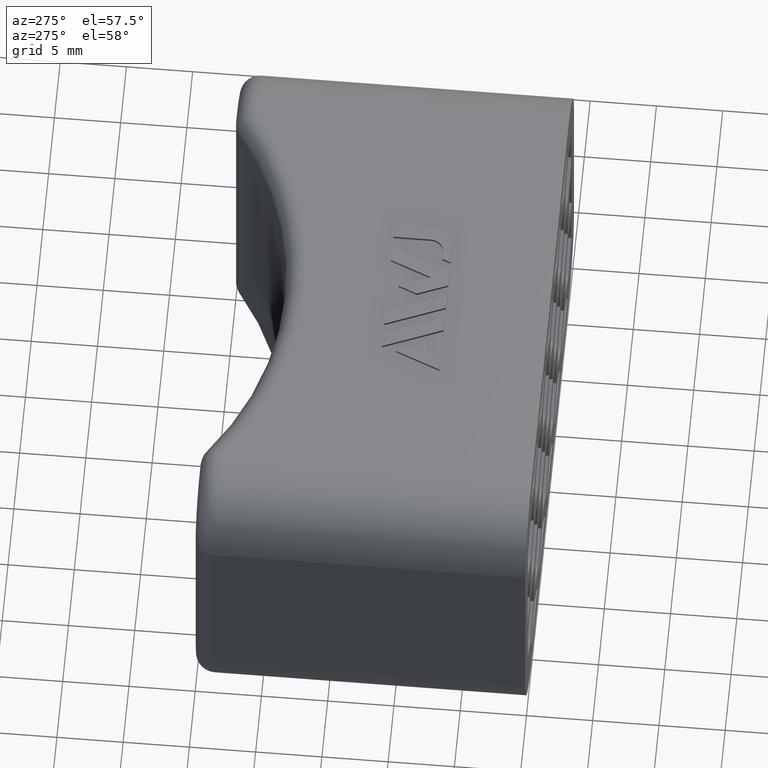
[diagram: clean part render]
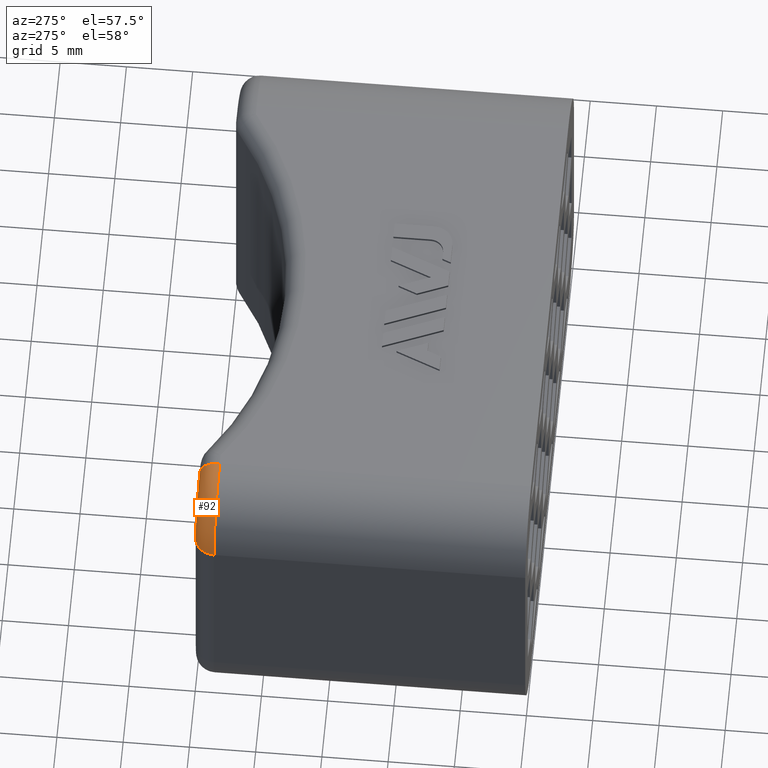
[diagram: same view with one face highlighted and labeled with its STEP entity id]
A machine part, auxiliary view. The second image highlights one B-rep face of the part: STEP entity #92.
In plain terms, the highlighted toroidal blend (fillet) surface has major radius 3.5 mm and minor (blend) radius 1.5 mm.
Its self-contained STEP definition (entity closure, byte-faithful):
#92 = ADVANCED_FACE( '', ( #400 ), #401, .T. );
#400 = FACE_OUTER_BOUND( '', #946, .T. );
#401 = TOROIDAL_SURFACE( '', #947, 3.50000000000000, 1.50000000000000 );
#946 = EDGE_LOOP( '', ( #1742, #1743, #1744, #1745 ) );
#947 = AXIS2_PLACEMENT_3D( '', #1746, #1747, #1748 );
#1742 = ORIENTED_EDGE( '', *, *, #3707, .T. );
#1743 = ORIENTED_EDGE( '', *, *, #3708, .F. );
#1744 = ORIENTED_EDGE( '', *, *, #3689, .F. );
#1745 = ORIENTED_EDGE( '', *, *, #3709, .F. );
#1746 = CARTESIAN_POINT( '', ( -16.0000000000000, 23.5000000000000, 7.50000000000000 ) );
#1747 = DIRECTION( '', ( 0.000000000000000, 1.00000000000000, 0.000000000000000 ) );
#1748 = DIRECTION( '', ( 0.000000000000000, 0.000000000000000, 1.00000000000000 ) );
#3689 = EDGE_CURVE( '', #4537, #4538, #4539, .T. );
#3707 = EDGE_CURVE( '', #4507, #4567, #4568, .T. );
#3708 = EDGE_CURVE( '', #4538, #4567, #4569, .T. );
#3709 = EDGE_CURVE( '', #4507, #4537, #4570, .F. );
#4507 = VERTEX_POINT( '', #5757 );
#4537 = VERTEX_POINT( '', #5805 );
#4538 = VERTEX_POINT( '', #5806 );
#4539 = CIRCLE( '', #5807, 1.50000000000000 );
#4567 = VERTEX_POINT( '', #5842 );
#4568 = CIRCLE( '', #5843, 1.50000000000000 );
#4569 = CIRCLE( '', #5844, 3.50000000000000 );
#4570 = CIRCLE( '', #5845, 5.00000000000000 );
#5757 = CARTESIAN_POINT( '', ( -16.0000000000000, 23.5000000000000, 12.5000000000000 ) );
#5805 = CARTESIAN_POINT( '', ( -21.0000000000000, 23.5000000000000, 7.50000000000000 ) );
#5806 = CARTESIAN_POINT( '', ( -19.5000000000000, 25.0000000000000, 7.50000000000000 ) );
#5807 = AXIS2_PLACEMENT_3D( '', #6977, #6978, #6979 );
#5842 = CARTESIAN_POINT( '', ( -16.0000000000000, 25.0000000000000, 11.0000000000000 ) );
#5843 = AXIS2_PLACEMENT_3D( '', #7017, #7018, #7019 );
#5844 = AXIS2_PLACEMENT_3D( '', #7020, #7021, #7022 );
#5845 = AXIS2_PLACEMENT_3D( '', #7023, #7024, #7025 );
#6977 = CARTESIAN_POINT( '', ( -19.5000000000000, 23.5000000000000, 7.50000000000000 ) );
#6978 = DIRECTION( '', ( 0.000000000000000, 0.000000000000000, -1.00000000000000 ) );
#6979 = DIRECTION( '', ( -1.00000000000000, 0.000000000000000, 0.000000000000000 ) );
#7017 = CARTESIAN_POINT( '', ( -16.0000000000000, 23.5000000000000, 11.0000000000000 ) );
#7018 = DIRECTION( '', ( -1.00000000000000, 0.000000000000000, 0.000000000000000 ) );
#7019 = DIRECTION( '', ( 0.000000000000000, 0.000000000000000, 1.00000000000000 ) );
#7020 = CARTESIAN_POINT( '', ( -16.0000000000000, 25.0000000000000, 7.50000000000000 ) );
#7021 = DIRECTION( '', ( 0.000000000000000, 1.00000000000000, 0.000000000000000 ) );
#7022 = DIRECTION( '', ( 0.000000000000000, 0.000000000000000, 1.00000000000000 ) );
#7023 = CARTESIAN_POINT( '', ( -16.0000000000000, 23.5000000000000, 7.50000000000000 ) );
#7024 = DIRECTION( '', ( 0.000000000000000, 1.00000000000000, 0.000000000000000 ) );
#7025 = DIRECTION( '', ( 0.000000000000000, 0.000000000000000, 1.00000000000000 ) );